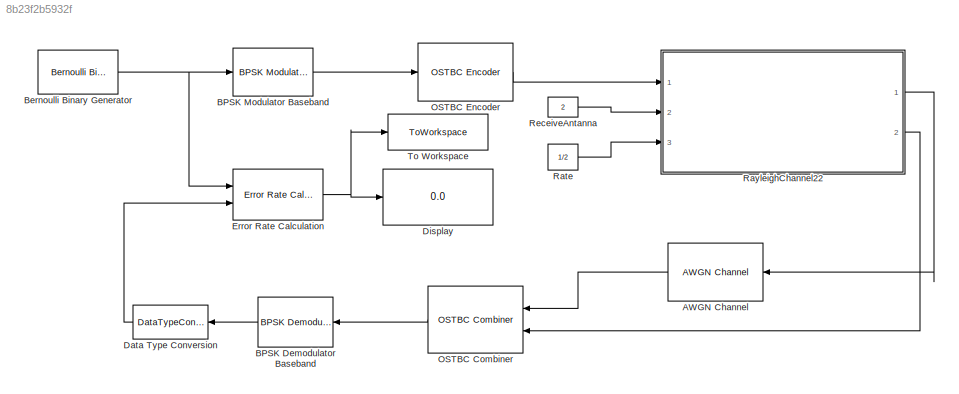
MODEL slx_8b23f2b5932f
KIND model
CONFIG AbsTol = auto
CONFIG EnableMultiTasking = off
CONFIG FixedStep = auto
CONFIG MaxStep = auto
CONFIG MinStep = auto
CONFIG RelTol = 1e-3
CONFIG SampleTimeConstraint = Unconstrained
CONFIG Solver = VariableStepAuto
CONFIG SolverName = VariableStepAuto
CONFIG StartTime = 0.0
CONFIG StopTime = 1
WORKSPACE source: MAT-file member
WORKSPACE FrameLen = 80
BLOCK [Reference] AWGN Channel  REF=commchan3/AWGN
Channel
  Ports = [1, 1]
  SourceBlock = commchan3/AWGN\nChannel
  SourceProductBaseCode = CM
  SourceProductName = Communications System Toolbox
  SourceType = AWGN Channel
  UserDataPersistent = on
BLOCK [Reference] BPSK Demodulator Baseband  REF=commdigbbndpm3/BPSK
Demodulator
Baseband
  Ports = [1, 1]
  SourceBlock = commdigbbndpm3/BPSK\nDemodulator\nBaseband
  SourceProductBaseCode = CM
  SourceProductName = Communications System Toolbox
  SourceType = BPSK Demodulator Baseband
BLOCK [Reference] BPSK Modulator Baseband  REF=commdigbbndpm3/BPSK
Modulator
Baseband
  Ports = [1, 1]
  SourceBlock = commdigbbndpm3/BPSK\nModulator\nBaseband
  SourceProductBaseCode = CM
  SourceProductName = Communications System Toolbox
  SourceType = BPSK Modulator Baseband
BLOCK [Reference] Bernoulli Binary Generator  REF=commrandsrc3/Bernoulli Binary
Generator
  Ports = [0, 1]
  SourceBlock = commrandsrc3/Bernoulli Binary\nGenerator
  SourceProductBaseCode = CM
  SourceProductName = Communications System Toolbox
  SourceType = Bernoulli Binary Generator
BLOCK [DataTypeConversion] Data Type Conversion
  OutDataTypeStr = boolean
  RndMeth = Floor
  SaturateOnIntegerOverflow = off
BLOCK [Display] Display
  Decimation = 1
  Ports = [1]
BLOCK [Reference] Error Rate Calculation  REF=commsink2/Error Rate
Calculation
  Ports = [2, 1]
  SourceBlock = commsink2/Error Rate\nCalculation
  SourceProductBaseCode = CM
  SourceProductName = Communications System Toolbox
  SourceType = Error Rate Calculation
BLOCK [Reference] OSTBC Combiner  REF=commmimo/OSTBC Combiner
  Ports = [2, 1]
  SourceBlock = commmimo/OSTBC Combiner
  SourceProductBaseCode = CM
  SourceProductName = Communications System Toolbox
  SourceType = OSTBC Combiner
BLOCK [Reference] OSTBC Encoder  REF=commmimo/OSTBC Encoder
  Ports = [1, 1]
  SourceBlock = commmimo/OSTBC Encoder
  SourceProductBaseCode = CM
  SourceProductName = Communications System Toolbox
  SourceType = OSTBC Encoder
BLOCK [Constant] Rate
  Value = 1/2
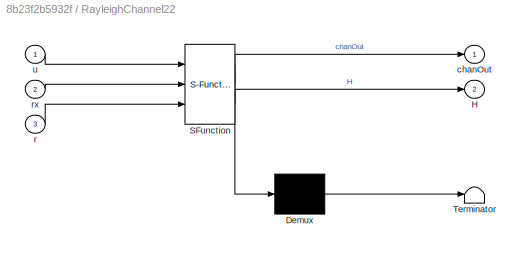
BLOCK [SubSystem] RayleighChannel22
  ErrorFcn = Stateflow.Translate.translate
  PermitHierarchicalResolution = ExplicitOnly
  Ports = [3, 2]
  RequestExecContextInheritance = off
  SFBlockType = MATLAB Function
  TreatAsAtomicUnit = on
BLOCK [Demux] RayleighChannel22/ Demux 
  Outputs = 1
  Ports = [1, 1]
BLOCK [S-Function] RayleighChannel22/ SFunction 
  EnableBusSupport = on
  FunctionName = sf_sfun
  PortCounts = [3 3]
  Ports = [3, 3]
  SFcnIsStateOwnerBlock = off
  SFunctionDeploymentMode = off
  Tag = Stateflow S-Function naibaoOSTBC_42 2
BLOCK [Terminator] RayleighChannel22/ Terminator 
BLOCK [Outport] RayleighChannel22/H
  IconDisplay = Port number
  Port = 2
BLOCK [Outport] RayleighChannel22/chanOut
  IconDisplay = Port number
BLOCK [Inport] RayleighChannel22/r
  IconDisplay = Port number
  Port = 3
BLOCK [Inport] RayleighChannel22/rx
  IconDisplay = Port number
  Port = 2
BLOCK [Inport] RayleighChannel22/u
  IconDisplay = Port number
BLOCK [Constant] ReceiveAntanna
  Value = 2
BLOCK [ToWorkspace] To Workspace
  FixptAsFi = on
  MaxDataPoints = 1
  Ports = [1]
  SampleTime = -1
  Save2DSignal = 2-D array (concatenate along first dimension)
  VariableName = BER_OSTBC_42
LINE AWGN Channel:1 -> OSTBC Combiner:1
LINE BPSK Demodulator Baseband:1 -> Data Type Conversion:1
LINE BPSK Modulator Baseband:1 -> OSTBC Encoder:1
NET Bernoulli Binary Generator:1 -> BPSK Modulator Baseband:1, Error Rate Calculation:1
LINE Data Type Conversion:1 -> Error Rate Calculation:2
NET Error Rate Calculation:1 -> Display:1, To Workspace:1
LINE OSTBC Combiner:1 -> BPSK Demodulator Baseband:1
LINE OSTBC Encoder:1 -> RayleighChannel22:1
LINE Rate:1 -> RayleighChannel22:3
LINE RayleighChannel22:1 -> AWGN Channel:1
LINE RayleighChannel22:2 -> OSTBC Combiner:2
LINE ReceiveAntanna:1 -> RayleighChannel22:2
note: NET lines group one-source signal fan-out (src -> all destinations, sorted); 1:1 wires keep LINE
CHART RayleighChannel22 states=1 transitions=1
  STATE_LABEL 'eML_blk_kernel()'
  STATE_LABEL 'SCRIPT:\nfunction [chanOut,H] = RayleighChannel22(u,rx,r)\n%得到Rayleigh信道，u为发射天线的信息，rx为接收天线的个数,r为编码速率\n%% 初始化参数\n% 获取输入帧长,输入天线数\ns=size(u);\nFrameLength=s(1);\nN=s(2);\n%接收天线数\nM=rx;\n%两个时隙中信道参数保持不变\nNum=0;\n%生成信道矩阵\nH = complex( zeros(FrameLength, N, 2) );\n%% 生成信道并计算输出\n%计算Num\nif s(2)==2 \n    Num=4;\nend\nif s(2)==4 && r==3/4\n    Num=8;\nend\nif s(2)==4 && r==1/2\n    Num=16;\nend\n%生成分组中，第一个分组中的信道增益\nH(1:Num:end, :, :...<+408ch>'
